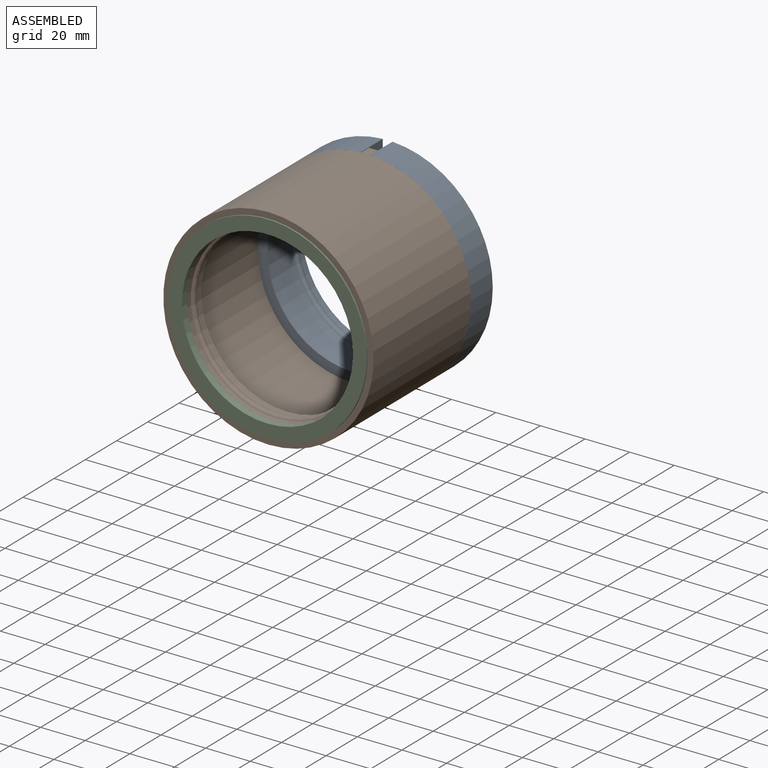
[diagram: assembled view]
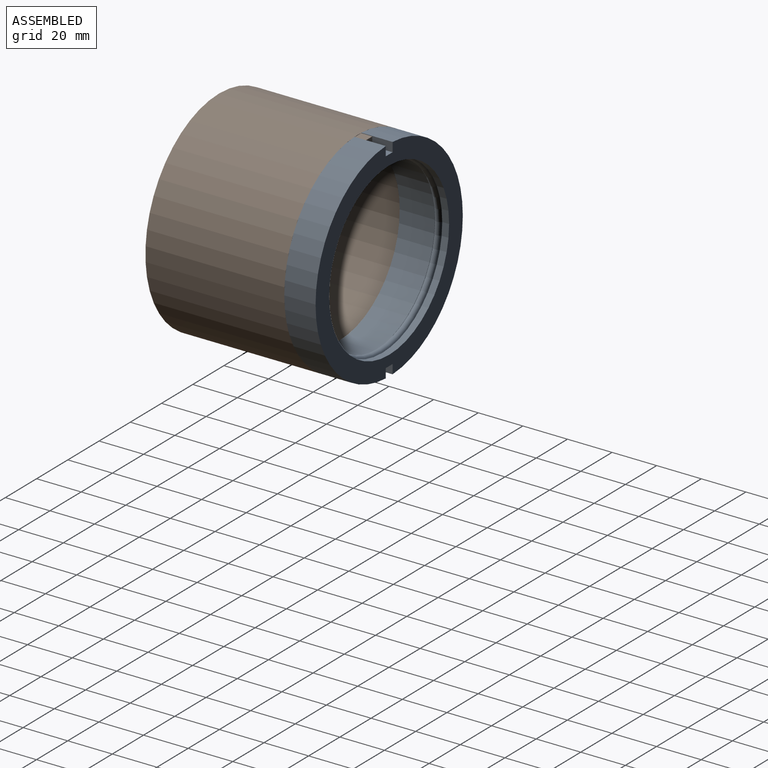
[diagram: assembled view, second angle]
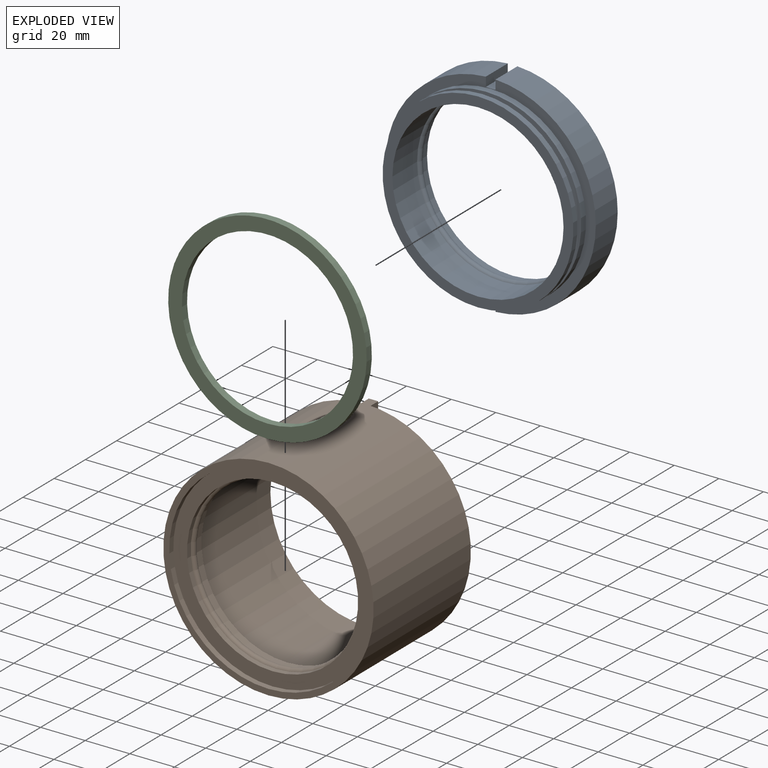
[diagram: exploded view]
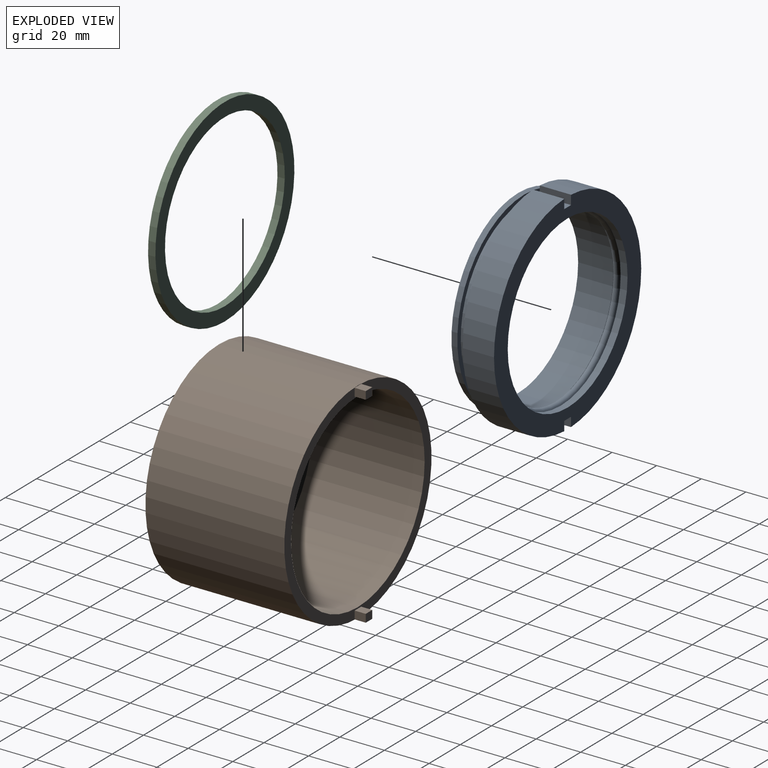
[diagram: exploded view, second angle]
ASSEMBLY  parts=3 mates=2
PART A: 23 faces, bbox 94.3x22.1x94.2 mm
  f0: plane 94.27x94.17mm, normal (0,1,0), area 2318.9mm2, adj f1,f2,f9,f17,f18,f19,f20,f21
  f1: cylinder r=47.13mm len=94.17mm, axis (0,-1,0), area 2016.7mm2, adj f0,f3,f19,f22
  f2: cylinder r=47.13mm len=94.17mm, axis (0,-1,0), area 2016.7mm2, adj f0,f3,f17,f21
  f3: plane 94.27x94.17mm, normal (0,-1,0), area 1201.6mm2, adj f1,f2,f10,f17,f18,f19,f20,f21
  f4: plane 77.41x77.41mm, normal (0,1,0), area 82.7mm2, adj f5,f16
  f5: torus R=39.03mm, axis (0,-1,0), area 2371.5mm2, adj f4,f6
  f6: plane 81.55x81.55mm, normal (0,1,0), area 355.7mm2, adj f5,f7
  f7: cylinder r=40.77mm len=81.55mm, axis (0,-1,0), area 842.5mm2, adj f6,f8
  f8: plane 81.55x81.55mm, normal (0,-1,0), area 599.6mm2, adj f7,f9
  f9: cylinder r=38.36mm len=76.73mm, axis (0,-1,0), area 739.8mm2, adj f0,f8
  f10: cylinder r=42.75mm len=85.5mm, axis (0,-1,0), area 824.4mm2, adj f3,f11
  f11: plane 85.5x85.5mm, normal (0,-1,0), area 573.8mm2, adj f10,f12
  f12: cylinder r=40.56mm len=81.11mm, axis (0,-1,0), area 614.5mm2, adj f11,f13
  f13: plane 85.5x85.5mm, normal (0,1,0), area 573.8mm2, adj f12,f14
  f14: cylinder r=42.75mm len=85.5mm, axis (0,-1,0), area 706.6mm2, adj f13,f15
  f15: plane 85.5x85.5mm, normal (0,-1,0), area 1117.3mm2, adj f14,f16
  f16: cylinder r=38.36mm len=76.73mm, axis (0,-1,0), area 3804.9mm2, adj f4,f15
  f17: plane 14.03x4.17mm, normal (-1,0,0), area 58.6mm2, adj f0,f2,f3,f18
  f18: plane 14.03x4.34mm, normal (0,0,-1), area 60.9mm2, adj f0,f3,f17,f19
  f19: plane 14.03x4.17mm, normal (1,0,0), area 58.6mm2, adj f0,f1,f3,f18
  f20: plane 14.03x4.34mm, normal (0,0,1), area 60.9mm2, adj f0,f3,f21,f22
  f21: plane 14.03x4.17mm, normal (-1,0,0), area 58.6mm2, adj f0,f2,f3,f20
  f22: plane 14.03x4.17mm, normal (1,0,0), area 58.6mm2, adj f0,f1,f3,f20
PART B: 24 faces, bbox 94.3x67.3x94.3 mm
  f0: plane 94.27x94.27mm, normal (0,1,0), area 1208.2mm2, adj f7,f8,f14,f15,f16,f17,f19,f20
  f1: torus R=38.96mm, axis (0,-1,0), area 2357.8mm2, adj f2,f13
  f2: plane 81.55x81.55mm, normal (0,1,0), area 369.8mm2, adj f1,f3
  f3: cylinder r=40.77mm len=81.55mm, axis (0,-1,0), area 842.5mm2, adj f2,f4
  f4: plane 81.55x81.55mm, normal (0,-1,0), area 599.6mm2, adj f3,f5
  f5: cylinder r=38.36mm len=76.73mm, axis (0,-1,0), area 845.5mm2, adj f4,f6
  f6: plane 85.5x85.5mm, normal (0,1,0), area 1117.3mm2, adj f5,f7
  f7: cylinder r=42.75mm len=85.5mm, axis (0,-1,0), area 13543.7mm2, adj f0,f6
  f8: cylinder r=47.13mm len=94.27mm, axis (0,-1,0), area 18438.8mm2, adj f0,f9
  f9: plane 94.27x94.27mm, normal (0,-1,0), area 757.4mm2, adj f8,f10
  f10: cylinder r=44.5mm len=89mm, axis (0,-1,0), area 735.6mm2, adj f9,f11
  f11: plane 89x89mm, normal (0,-1,0), area 1598.1mm2, adj f10,f12
  f12: cylinder r=38.36mm len=76.73mm, axis (0,-1,0), area 581.3mm2, adj f11,f13
  f13: plane 77.22x77.22mm, normal (0,1,0), area 60mm2, adj f1,f12
  f14: plane 5x4.18mm, normal (0,0,-1), area 20.9mm2, adj f0,f15,f17,f18
  f15: plane 5x3.58mm, normal (-1,0,0), area 17.9mm2, adj f0,f14,f16,f18
  f16: plane 5x4.18mm, normal (0,0,1), area 20.9mm2, adj f0,f15,f17,f18
  f17: plane 5x3.58mm, normal (1,0,0), area 17.9mm2, adj f0,f14,f16,f18
  f18: plane 4.18x3.58mm, normal (0,1,0), area 15mm2, adj f14,f15,f16,f17
  f19: plane 5x4.18mm, normal (0,0,1), area 20.9mm2, adj f0,f20,f22,f23
  f20: plane 5x3.58mm, normal (1,0,0), area 17.9mm2, adj f0,f19,f21,f23
  f21: plane 5x4.18mm, normal (0,0,-1), area 20.9mm2, adj f0,f20,f22,f23
  f22: plane 5x3.58mm, normal (-1,0,0), area 17.9mm2, adj f0,f19,f21,f23
  f23: plane 4.18x3.58mm, normal (0,1,0), area 15mm2, adj f19,f20,f21,f22
PART C: 4 faces, bbox 89x3.3x89 mm
  f0: plane 89x89mm, normal (0,1,0), area 1598.1mm2, adj f1,f3
  f1: cylinder r=44.5mm len=89mm, axis (0,-1,0), area 919.5mm2, adj f0,f2
  f2: plane 89x89mm, normal (0,-1,0), area 1598.1mm2, adj f1,f3
  f3: cylinder r=38.36mm len=76.73mm, axis (0,-1,0), area 792.7mm2, adj f0,f2
PLACE A t=(-4.51,-31.73,0)mm
PLACE B t=(-4.51,0.94,0)mm
PLACE C t=(-4.51,14.53,0)mm
MATE fastened C.f1 <-> B.f1  axis (0,1,0) through (-4.51,-70.7,0)mm
MATE fastened B.f1 <-> A.f1  axis (0,1,0) through (-4.51,-11.07,0)mm
